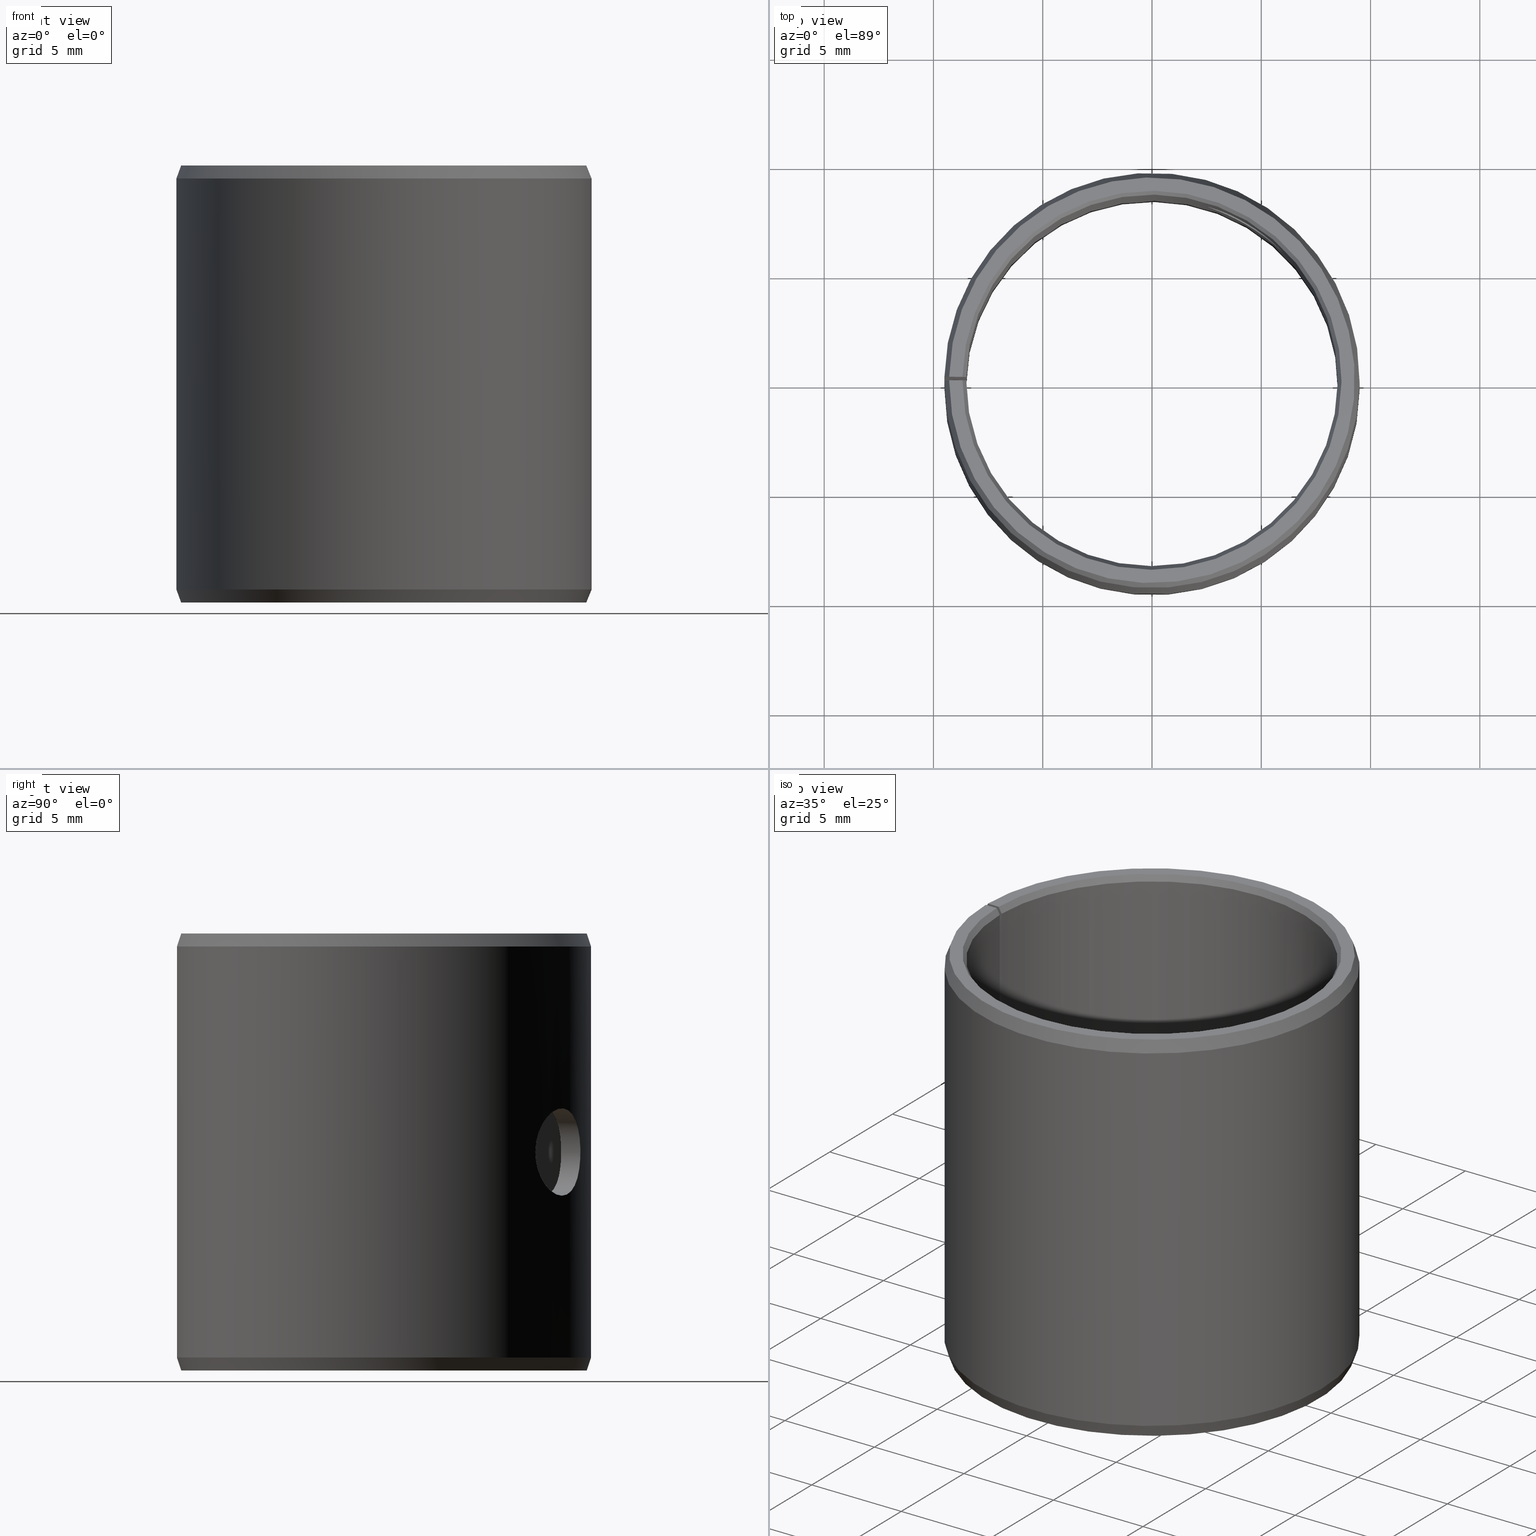
[diagram: canonical four-view strip — front | top / right | iso, engineering-drawing reading convention]
A machine part, canonical four-view strip (front | top / right | iso — engineering-drawing reading convention). The complete STEP part file that produces these views, byte-faithful:
ISO-10303-21;
HEADER;
FILE_DESCRIPTION(('STEP AP203'),'1');
FILE_NAME('440-POM1720LMB.stp','2016-09-20T20:51:23',(' '),(' '),'Spatial InterOp 3D',' ',' ');
FILE_SCHEMA(('CONFIG_CONTROL_DESIGN'));
ENDSEC;
DATA;
#1=DESIGN_CONTEXT('',#51,'design');
#2=APPLICATION_PROTOCOL_DEFINITION('INTERNATIONAL STANDARD','config_control_design',1994,#51);
#3=PRODUCT_CATEGORY_RELATIONSHIP('NONE','NONE',#52,#53);
#4=DATE_AND_TIME(#54,#55);
#5=DATE_TIME_ROLE('creation_date');
#6=DATE_TIME_ROLE('classification_date');
#7=PERSON_AND_ORGANIZATION_ROLE('creator');
#8=PERSON_AND_ORGANIZATION_ROLE('design_supplier');
#9=PERSON_AND_ORGANIZATION_ROLE('classification_officer');
#10=PERSON_AND_ORGANIZATION_ROLE('design_owner');
#11=APPROVAL_PERSON_ORGANIZATION(#56,#57,#58);
#12=APPROVAL_DATE_TIME(#4,#57);
#13=CC_DESIGN_APPROVAL(#57,(#59,#60,#61));
#14=CC_DESIGN_DATE_AND_TIME_ASSIGNMENT(#4,#5,(#61));
#15=CC_DESIGN_DATE_AND_TIME_ASSIGNMENT(#4,#6,(#59));
#16=CC_DESIGN_PERSON_AND_ORGANIZATION_ASSIGNMENT(#56,#10,(#62));
#17=CC_DESIGN_PERSON_AND_ORGANIZATION_ASSIGNMENT(#56,#7,(#61));
#18=CC_DESIGN_PERSON_AND_ORGANIZATION_ASSIGNMENT(#56,#7,(#60));
#19=CC_DESIGN_PERSON_AND_ORGANIZATION_ASSIGNMENT(#56,#8,(#60));
#20=CC_DESIGN_SECURITY_CLASSIFICATION(#59,(#60));
#21=CC_DESIGN_PERSON_AND_ORGANIZATION_ASSIGNMENT(#56,#9,(#59));
#22=SHAPE_DEFINITION_REPRESENTATION(#63,#64);
#23=DESIGN_CONTEXT('',#65,'design');
#24=APPLICATION_PROTOCOL_DEFINITION('INTERNATIONAL STANDARD','config_control_design',1994,#65);
#25=PRODUCT_CATEGORY_RELATIONSHIP('NONE','NONE',#66,#67);
#26=DATE_AND_TIME(#68,#69);
#27=DATE_TIME_ROLE('creation_date');
#28=DATE_TIME_ROLE('classification_date');
#29=PERSON_AND_ORGANIZATION_ROLE('creator');
#30=PERSON_AND_ORGANIZATION_ROLE('design_supplier');
#31=PERSON_AND_ORGANIZATION_ROLE('classification_officer');
#32=PERSON_AND_ORGANIZATION_ROLE('design_owner');
#33=APPROVAL_PERSON_ORGANIZATION(#70,#71,#72);
#34=APPROVAL_DATE_TIME(#26,#71);
#35=CC_DESIGN_APPROVAL(#71,(#73,#74,#75));
#36=CC_DESIGN_DATE_AND_TIME_ASSIGNMENT(#26,#27,(#75));
#37=CC_DESIGN_DATE_AND_TIME_ASSIGNMENT(#26,#28,(#73));
#38=CC_DESIGN_PERSON_AND_ORGANIZATION_ASSIGNMENT(#70,#32,(#76));
#39=CC_DESIGN_PERSON_AND_ORGANIZATION_ASSIGNMENT(#70,#29,(#75));
#40=CC_DESIGN_PERSON_AND_ORGANIZATION_ASSIGNMENT(#70,#29,(#74));
#41=CC_DESIGN_PERSON_AND_ORGANIZATION_ASSIGNMENT(#70,#30,(#74));
#42=CC_DESIGN_SECURITY_CLASSIFICATION(#73,(#74));
#43=CC_DESIGN_PERSON_AND_ORGANIZATION_ASSIGNMENT(#70,#31,(#73));
#44=CONTEXT_DEPENDENT_SHAPE_REPRESENTATION(#77,#78);
#45=SHAPE_DEFINITION_REPRESENTATION(#79,#80);
#46=SHAPE_REPRESENTATION_RELATIONSHIP('NONE','NONE',#80,#81);
#47= (GEOMETRIC_REPRESENTATION_CONTEXT(3)GLOBAL_UNCERTAINTY_ASSIGNED_CONTEXT((#84))GLOBAL_UNIT_ASSIGNED_CONTEXT((#86,#87,#88))REPRESENTATION_CONTEXT('NONE','WORKSPACE'));
#51=APPLICATION_CONTEXT('CONFIGURATION CONTROLLED 3D DESIGNS OF MECHANICAL PARTS AND ASSEMBLIES');
#52=PRODUCT_CATEGORY('part','NONE');
#53=PRODUCT_RELATED_PRODUCT_CATEGORY('detail',' ',(#62));
#54=CALENDAR_DATE(2016,20,8);
#55=LOCAL_TIME(22,51,23.0,#90);
#56=PERSON_AND_ORGANIZATION(#91,#92);
#57=APPROVAL(#93,'SOLID MODEL');
#58=APPROVAL_ROLE('APPROVED');
#59=SECURITY_CLASSIFICATION('','',#94);
#60=PRODUCT_DEFINITION_FORMATION_WITH_SPECIFIED_SOURCE(' ','NONE',#62,.NOT_KNOWN.);
#61=PRODUCT_DEFINITION('NONE','NONE',#60,#1);
#62=PRODUCT('','','PART--DESC',(#95));
#63=PRODUCT_DEFINITION_SHAPE('NONE','NONE',#61);
#64=SHAPE_REPRESENTATION('',(#96,#97),#98);
#65=APPLICATION_CONTEXT('CONFIGURATION CONTROLLED 3D DESIGNS OF MECHANICAL PARTS AND ASSEMBLIES');
#66=PRODUCT_CATEGORY('part','NONE');
#67=PRODUCT_RELATED_PRODUCT_CATEGORY('detail',' ',(#76));
#68=CALENDAR_DATE(2016,20,8);
#69=LOCAL_TIME(22,51,23.0,#99);
#70=PERSON_AND_ORGANIZATION(#100,#101);
#71=APPROVAL(#102,'SOLID MODEL');
#72=APPROVAL_ROLE('APPROVED');
#73=SECURITY_CLASSIFICATION('','',#103);
#74=PRODUCT_DEFINITION_FORMATION_WITH_SPECIFIED_SOURCE(' ','NONE',#76,.NOT_KNOWN.);
#75=PRODUCT_DEFINITION('440-POM1720LMB','440-POM1720LMB',#74,#23);
#76=PRODUCT('440-POM1720LMB','440-POM1720LMB','PART-440-POM1720LMB-DESC',(#104));
#77=(REPRESENTATION_RELATIONSHIP('','',#80,#64)REPRESENTATION_RELATIONSHIP_WITH_TRANSFORMATION(#107)SHAPE_REPRESENTATION_RELATIONSHIP());
#78=PRODUCT_DEFINITION_SHAPE('NAUO-PROD-DEF','NAUO-PROD-DEF',#109);
#79=PRODUCT_DEFINITION_SHAPE('NONE','NONE',#75);
#80=SHAPE_REPRESENTATION('440-POM1720LMB',(#96),#98);
#81=ADVANCED_BREP_SHAPE_REPRESENTATION('',(#110),#47);
#84=UNCERTAINTY_MEASURE_WITH_UNIT(LENGTH_MEASURE(1.0E-006),#86,'','');
#86= (CONVERSION_BASED_UNIT('METRE',#113)LENGTH_UNIT()NAMED_UNIT(#116));
#87= (NAMED_UNIT(#118)PLANE_ANGLE_UNIT()SI_UNIT($,.RADIAN.));
#88= (NAMED_UNIT(#118)SOLID_ANGLE_UNIT()SI_UNIT($,.STERADIAN.));
#90=COORDINATED_UNIVERSAL_TIME_OFFSET(1,0,.AHEAD.);
#91=PERSON('','UNSPECIFIED',$,$,$,$);
#92=ORGANIZATION('UNSPECIFIED','UNSPECIFIED','UNSPECIFIED');
#93=APPROVAL_STATUS('approved');
#94=SECURITY_CLASSIFICATION_LEVEL('unclassified');
#95=MECHANICAL_CONTEXT('',#51,'mechanical');
#96=AXIS2_PLACEMENT_3D('',#124,#125,#126);
#97=AXIS2_PLACEMENT_3D('',#127,#128,#129);
#98= (GEOMETRIC_REPRESENTATION_CONTEXT(3)GLOBAL_UNCERTAINTY_ASSIGNED_CONTEXT((#132))GLOBAL_UNIT_ASSIGNED_CONTEXT((#134,#135,#136))REPRESENTATION_CONTEXT('NONE','WORKSPACE'));
#99=COORDINATED_UNIVERSAL_TIME_OFFSET(1,0,.AHEAD.);
#100=PERSON('','UNSPECIFIED',$,$,$,$);
#101=ORGANIZATION('UNSPECIFIED','UNSPECIFIED','UNSPECIFIED');
#102=APPROVAL_STATUS('approved');
#103=SECURITY_CLASSIFICATION_LEVEL('unclassified');
#104=MECHANICAL_CONTEXT('',#65,'mechanical');
#107=ITEM_DEFINED_TRANSFORMATION('','',#96,#97);
#109=NEXT_ASSEMBLY_USAGE_OCCURRENCE('440-POM1720LMB','440-POM1720LMB','440-POM1720LMB',#61,#75,$);
#110=MANIFOLD_SOLID_BREP('',#138);
#113=LENGTH_MEASURE_WITH_UNIT(LENGTH_MEASURE(1.0),#139);
#116=DIMENSIONAL_EXPONENTS(1.0,0.0,0.0,0.0,0.0,0.0,0.0);
#118=DIMENSIONAL_EXPONENTS(0.0,0.0,0.0,0.0,0.0,0.0,0.0);
#124=CARTESIAN_POINT('',(0.0,0.0,0.0));
#125=DIRECTION('',(0.0,0.0,1.0));
#126=DIRECTION('',(1.0,0.0,0.0));
#127=CARTESIAN_POINT('',(0.0,0.0,0.0));
#128=DIRECTION('',(5.48707263966374E-016,-5.48707263966376E-016,1.0));
#129=DIRECTION('',(1.39349996950756E-015,1.0,5.48707263966375E-016));
#132=UNCERTAINTY_MEASURE_WITH_UNIT(LENGTH_MEASURE(1.0E-006),#134,'','');
#134= (CONVERSION_BASED_UNIT('METRE',#142)LENGTH_UNIT()NAMED_UNIT(#145));
#135= (NAMED_UNIT(#147)PLANE_ANGLE_UNIT()SI_UNIT($,.RADIAN.));
#136= (NAMED_UNIT(#147)SOLID_ANGLE_UNIT()SI_UNIT($,.STERADIAN.));
#138=CLOSED_SHELL('',(#153,#154,#155,#156,#157,#158,#159,#160,#161,#162,#163));
#139= (NAMED_UNIT(#116)LENGTH_UNIT()SI_UNIT($,.METRE.));
#142=LENGTH_MEASURE_WITH_UNIT(LENGTH_MEASURE(1.0),#165);
#145=DIMENSIONAL_EXPONENTS(1.0,0.0,0.0,0.0,0.0,0.0,0.0);
#147=DIMENSIONAL_EXPONENTS(0.0,0.0,0.0,0.0,0.0,0.0,0.0);
#153=ADVANCED_FACE('',(#166),#167,.F.);
#154=ADVANCED_FACE('',(#168),#169,.T.);
#155=ADVANCED_FACE('',(#170),#171,.T.);
#156=ADVANCED_FACE('',(#172),#173,.T.);
#157=ADVANCED_FACE('',(#174),#175,.T.);
#158=ADVANCED_FACE('',(#176),#177,.F.);
#159=ADVANCED_FACE('',(#178),#179,.T.);
#160=ADVANCED_FACE('',(#180),#181,.F.);
#161=ADVANCED_FACE('',(#182,#183),#184,.F.);
#162=ADVANCED_FACE('',(#185,#186),#187,.T.);
#163=ADVANCED_FACE('',(#188,#189),#190,.F.);
#165= (NAMED_UNIT(#145)LENGTH_UNIT()SI_UNIT($,.METRE.));
#166=FACE_OUTER_BOUND('',#192,.T.);
#167=CONICAL_SURFACE('',#193,0.0085,0.523598775598307);
#168=FACE_OUTER_BOUND('',#194,.T.);
#169=PLANE('',#195);
#170=FACE_OUTER_BOUND('',#196,.T.);
#171=CONICAL_SURFACE('',#197,0.00928161785944028,0.349065850398866);
#172=FACE_OUTER_BOUND('',#198,.T.);
#173=CONICAL_SURFACE('',#199,0.0095,0.349065850398866);
#174=FACE_OUTER_BOUND('',#200,.T.);
#175=PLANE('',#201);
#176=FACE_OUTER_BOUND('',#202,.T.);
#177=CONICAL_SURFACE('',#203,0.00867320508075689,0.523598775598298);
#178=FACE_OUTER_BOUND('',#204,.T.);
#179=PLANE('',#205);
#180=FACE_OUTER_BOUND('',#206,.T.);
#181=PLANE('',#207);
#182=FACE_OUTER_BOUND('',#208,.T.);
#183=FACE_BOUND('',#209,.T.);
#184=CYLINDRICAL_SURFACE('',#210,0.0085);
#185=FACE_OUTER_BOUND('',#211,.T.);
#186=FACE_BOUND('',#212,.T.);
#187=CYLINDRICAL_SURFACE('',#213,0.0095);
#188=FACE_OUTER_BOUND('',#214,.T.);
#189=FACE_OUTER_BOUND('',#215,.T.);
#190=CYLINDRICAL_SURFACE('',#216,0.002);
#192=EDGE_LOOP('',(#217,#218,#219,#220));
#193=AXIS2_PLACEMENT_3D('',#221,#222,#223);
#194=EDGE_LOOP('',(#224,#225,#226,#227));
#195=AXIS2_PLACEMENT_3D('',#228,#229,#230);
#196=EDGE_LOOP('',(#231,#232,#233,#234));
#197=AXIS2_PLACEMENT_3D('',#235,#236,#237);
#198=EDGE_LOOP('',(#238,#239,#240,#241));
#199=AXIS2_PLACEMENT_3D('',#242,#243,#244);
#200=EDGE_LOOP('',(#245,#246,#247,#248));
#201=AXIS2_PLACEMENT_3D('',#249,#250,#251);
#202=EDGE_LOOP('',(#252,#253,#254,#255));
#203=AXIS2_PLACEMENT_3D('',#256,#257,#258);
#204=EDGE_LOOP('',(#259,#260,#261,#262,#263,#264,#265,#266));
#205=AXIS2_PLACEMENT_3D('',#267,#268,#269);
#206=EDGE_LOOP('',(#270,#271,#272,#273,#274,#275,#276,#277));
#207=AXIS2_PLACEMENT_3D('',#278,#279,#280);
#208=EDGE_LOOP('',(#281,#282,#283,#284));
#209=EDGE_LOOP('',(#285));
#210=AXIS2_PLACEMENT_3D('',#286,#287,#288);
#211=EDGE_LOOP('',(#289,#290,#291,#292));
#212=EDGE_LOOP('',(#293));
#213=AXIS2_PLACEMENT_3D('',#294,#295,#296);
#214=EDGE_LOOP('',(#297));
#215=EDGE_LOOP('',(#298));
#216=AXIS2_PLACEMENT_3D('',#299,#300,#301);
#217=ORIENTED_EDGE('',*,*,#302,.T.);
#218=ORIENTED_EDGE('',*,*,#303,.F.);
#219=ORIENTED_EDGE('',*,*,#304,.F.);
#220=ORIENTED_EDGE('',*,*,#305,.T.);
#221=CARTESIAN_POINT('',(-6.93889390390723E-018,-6.93889390390723E-018,0.0003));
#222=DIRECTION('',(6.12323399573677E-017,-0.0,-1.0));
#223=DIRECTION('',(-1.0,0.0,-6.12323399573677E-017));
#224=ORIENTED_EDGE('',*,*,#306,.T.);
#225=ORIENTED_EDGE('',*,*,#307,.F.);
#226=ORIENTED_EDGE('',*,*,#302,.F.);
#227=ORIENTED_EDGE('',*,*,#308,.T.);
#228=CARTESIAN_POINT('',(0.000151368300183277,0.00867188410961347,-2.88886962217922E-019));
#229=DIRECTION('',(6.12323399573677E-017,0.0,-1.0));
#230=DIRECTION('',(-1.0,0.0,-6.12323399573677E-017));
#231=ORIENTED_EDGE('',*,*,#309,.T.);
#232=ORIENTED_EDGE('',*,*,#310,.F.);
#233=ORIENTED_EDGE('',*,*,#306,.F.);
#234=ORIENTED_EDGE('',*,*,#311,.T.);
#235=CARTESIAN_POINT('',(-6.93889390390723E-018,-6.93889390390723E-018,-5.42101086242752E-019));
#236=DIRECTION('',(-6.12323399573677E-017,0.0,1.0));
#237=DIRECTION('',(1.0,0.0,6.12323399573677E-017));
#238=ORIENTED_EDGE('',*,*,#312,.T.);
#239=ORIENTED_EDGE('',*,*,#313,.F.);
#240=ORIENTED_EDGE('',*,*,#314,.F.);
#241=ORIENTED_EDGE('',*,*,#315,.T.);
#242=CARTESIAN_POINT('',(-8.67361737988404E-018,-6.93889390390723E-018,0.0194));
#243=DIRECTION('',(6.12323399573677E-017,-0.0,-1.0));
#244=DIRECTION('',(-1.0,0.0,-6.12323399573677E-017));
#245=ORIENTED_EDGE('',*,*,#316,.T.);
#246=ORIENTED_EDGE('',*,*,#317,.T.);
#247=ORIENTED_EDGE('',*,*,#318,.F.);
#248=ORIENTED_EDGE('',*,*,#312,.F.);
#249=CARTESIAN_POINT('',(0.000161986567278495,0.00928020422408375,0.02));
#250=DIRECTION('',(-6.12323399573677E-017,0.0,1.0));
#251=DIRECTION('',(1.0,0.0,6.12323399573677E-017));
#252=ORIENTED_EDGE('',*,*,#319,.T.);
#253=ORIENTED_EDGE('',*,*,#320,.F.);
#254=ORIENTED_EDGE('',*,*,#317,.F.);
#255=ORIENTED_EDGE('',*,*,#321,.T.);
#256=CARTESIAN_POINT('',(-8.67361737988404E-018,-6.93889390390723E-018,0.02));
#257=DIRECTION('',(-6.12323399573677E-017,0.0,1.0));
#258=DIRECTION('',(1.0,0.0,6.12323399573677E-017));
#259=ORIENTED_EDGE('',*,*,#320,.T.);
#260=ORIENTED_EDGE('',*,*,#322,.T.);
#261=ORIENTED_EDGE('',*,*,#303,.T.);
#262=ORIENTED_EDGE('',*,*,#307,.T.);
#263=ORIENTED_EDGE('',*,*,#310,.T.);
#264=ORIENTED_EDGE('',*,*,#323,.T.);
#265=ORIENTED_EDGE('',*,*,#313,.T.);
#266=ORIENTED_EDGE('',*,*,#318,.T.);
#267=CARTESIAN_POINT('',(-6.93889390390723E-018,-0.014,0.0));
#268=DIRECTION('',(1.0,0.0,0.0));
#269=DIRECTION('',(0.0,0.0,-1.0));
#270=ORIENTED_EDGE('',*,*,#321,.F.);
#271=ORIENTED_EDGE('',*,*,#316,.F.);
#272=ORIENTED_EDGE('',*,*,#315,.F.);
#273=ORIENTED_EDGE('',*,*,#324,.F.);
#274=ORIENTED_EDGE('',*,*,#311,.F.);
#275=ORIENTED_EDGE('',*,*,#308,.F.);
#276=ORIENTED_EDGE('',*,*,#305,.F.);
#277=ORIENTED_EDGE('',*,*,#325,.F.);
#278=CARTESIAN_POINT('',(-0.000244333690121977,-0.0139978677321895,-1.49611235765866E-020));
#279=DIRECTION('',(0.999847695156391,-0.0174524064372836,-9.3259819610035E-021));
#280=DIRECTION('',(9.32598196100733E-021,1.0686516840419E-018,-1.0));
#281=ORIENTED_EDGE('',*,*,#304,.T.);
#282=ORIENTED_EDGE('',*,*,#322,.F.);
#283=ORIENTED_EDGE('',*,*,#319,.F.);
#284=ORIENTED_EDGE('',*,*,#325,.T.);
#285=ORIENTED_EDGE('',*,*,#326,.T.);
#286=CARTESIAN_POINT('',(-6.93889390390723E-018,-6.93889390390723E-018,0.0));
#287=DIRECTION('',(6.12323399573677E-017,0.0,-1.0));
#288=DIRECTION('',(-1.0,0.0,-6.12323399573677E-017));
#289=ORIENTED_EDGE('',*,*,#314,.T.);
#290=ORIENTED_EDGE('',*,*,#323,.F.);
#291=ORIENTED_EDGE('',*,*,#309,.F.);
#292=ORIENTED_EDGE('',*,*,#324,.T.);
#293=ORIENTED_EDGE('',*,*,#327,.T.);
#294=CARTESIAN_POINT('',(-6.93889390390723E-018,-6.93889390390723E-018,0.0));
#295=DIRECTION('',(6.12323399573677E-017,0.0,-1.0));
#296=DIRECTION('',(-1.0,0.0,-6.12323399573677E-017));
#297=ORIENTED_EDGE('',*,*,#326,.F.);
#298=ORIENTED_EDGE('',*,*,#327,.F.);
#299=CARTESIAN_POINT('',(0.00385725285316759,-0.00231767133708176,0.01));
#300=DIRECTION('',(0.857167300703911,-0.515038074907061,0.0));
#301=DIRECTION('',(-0.515038074907061,-0.857167300703911,0.0));
#302=EDGE_CURVE('',#328,#329,#330,.T.);
#303=EDGE_CURVE('',#331,#329,#332,.T.);
#304=EDGE_CURVE('',#333,#331,#334,.T.);
#305=EDGE_CURVE('',#333,#328,#335,.T.);
#306=EDGE_CURVE('',#336,#337,#338,.T.);
#307=EDGE_CURVE('',#329,#337,#339,.T.);
#308=EDGE_CURVE('',#328,#336,#340,.T.);
#309=EDGE_CURVE('',#341,#342,#343,.T.);
#310=EDGE_CURVE('',#337,#342,#344,.T.);
#311=EDGE_CURVE('',#336,#341,#345,.T.);
#312=EDGE_CURVE('',#346,#347,#348,.T.);
#313=EDGE_CURVE('',#349,#347,#350,.T.);
#314=EDGE_CURVE('',#351,#349,#352,.T.);
#315=EDGE_CURVE('',#351,#346,#353,.T.);
#316=EDGE_CURVE('',#346,#354,#355,.T.);
#317=EDGE_CURVE('',#354,#356,#357,.T.);
#318=EDGE_CURVE('',#347,#356,#358,.T.);
#319=EDGE_CURVE('',#359,#360,#361,.T.);
#320=EDGE_CURVE('',#356,#360,#362,.T.);
#321=EDGE_CURVE('',#354,#359,#363,.T.);
#322=EDGE_CURVE('',#360,#331,#364,.T.);
#323=EDGE_CURVE('',#342,#349,#365,.T.);
#324=EDGE_CURVE('',#341,#351,#366,.T.);
#325=EDGE_CURVE('',#359,#333,#367,.T.);
#326=EDGE_CURVE('',#368,#368,#369,.T.);
#327=EDGE_CURVE('',#370,#370,#371,.T.);
#328=VERTEX_POINT('',#372);
#329=VERTEX_POINT('',#373);
#330=CIRCLE('',#374,0.00867320508075689);
#331=VERTEX_POINT('',#375);
#332=LINE('',#376,#377);
#333=VERTEX_POINT('',#378);
#334=CIRCLE('',#379,0.0085);
#335=LINE('',#380,#381);
#336=VERTEX_POINT('',#382);
#337=VERTEX_POINT('',#383);
#338=CIRCLE('',#384,0.00928161785944028);
#339=LINE('',#385,#386);
#340=LINE('',#387,#388);
#341=VERTEX_POINT('',#389);
#342=VERTEX_POINT('',#390);
#343=CIRCLE('',#391,0.0095);
#344=LINE('',#392,#393);
#345=LINE('',#394,#395);
#346=VERTEX_POINT('',#396);
#347=VERTEX_POINT('',#397);
#348=CIRCLE('',#398,0.00928161785944028);
#349=VERTEX_POINT('',#399);
#350=LINE('',#400,#401);
#351=VERTEX_POINT('',#402);
#352=CIRCLE('',#403,0.0095);
#353=LINE('',#404,#405);
#354=VERTEX_POINT('',#406);
#355=LINE('',#407,#408);
#356=VERTEX_POINT('',#409);
#357=CIRCLE('',#410,0.00867320508075689);
#358=LINE('',#411,#412);
#359=VERTEX_POINT('',#413);
#360=VERTEX_POINT('',#414);
#361=CIRCLE('',#415,0.0085);
#362=LINE('',#416,#417);
#363=LINE('',#418,#419);
#364=LINE('',#420,#421);
#365=LINE('',#422,#423);
#366=LINE('',#424,#425);
#367=LINE('',#426,#427);
#368=VERTEX_POINT('',#428);
#369=B_SPLINE_CURVE_WITH_KNOTS('',3,(#429,#430,#431,#432,#433,#434,#435,#436,#437,#438,#439,#440,#441,#442,#443,#444,#445,#446,#447,#448,#449,#450,#451,#452,#453,#454,#455,#456,#457,#458,#459,#460,#461,#462,#463,#464,#465,#466,#467,#468,#469,#470,#471,#472,#473,#474,#475,#476,#477,#478,#479,#480,#481,#482),.UNSPECIFIED.,.T.,.F.,(2,2,2,2,2,2,2,2,2,2,2,2,2,2,2,2,2,2,2,2,2,2,2,2,2,2,2,2,2),(-0.000392130648972248,0.0,0.000392130648972245,0.00078426129794449,0.00117639194691674,0.00156852259588898,0.00235278389383347,0.00274491454280572,0.00313704519177797,0.00352917584075021,0.00392130648972246,0.00470556778766696,0.00509769843663921,0.00548982908561146,0.00588195973458371,0.00627409038355596,0.00705835168150045,0.0074504823304727,0.00784261297944495,0.00823474362841719,0.00862687427738944,0.00941113557533394,0.00980326622430618,0.0101953968732784,0.0109796581712229,0.0117639194691674,0.0121560501181396,0.0125481807671119,0.0129403114160841),.UNSPECIFIED.);
#370=VERTEX_POINT('',#483);
#371=B_SPLINE_CURVE_WITH_KNOTS('',3,(#484,#485,#486,#487,#488,#489,#490,#491,#492,#493,#494,#495,#496,#497,#498,#499,#500,#501,#502,#503,#504,#505,#506,#507,#508,#509,#510,#511,#512,#513,#514,#515,#516,#517,#518,#519,#520,#521,#522,#523,#524,#525,#526,#527,#528,#529,#530,#531,#532,#533,#534,#535,#536,#537),.UNSPECIFIED.,.T.,.F.,(2,2,2,2,2,2,2,2,2,2,2,2,2,2,2,2,2,2,2,2,2,2,2,2,2,2,2,2,2),(-0.000391852452461565,0.0,0.000391852452461561,0.000783704904923122,0.00117555735738468,0.00156740980984624,0.00235111471476937,0.00313481961969249,0.00352667207215406,0.00391852452461562,0.00470222942953875,0.00509408188200031,0.00548593433446188,0.00587778678692344,0.00626963923938501,0.00705334414430814,0.00744519659676971,0.00783704904923128,0.00822890150169284,0.00862075395415441,0.00940445885907754,0.00979631131153911,0.0101881637640007,0.0105800162164622,0.0109718686689238,0.0117555735738469,0.0121474260263085,0.0125392784787701,0.0129311309312316),.UNSPECIFIED.);
#372=CARTESIAN_POINT('',(0.000151368300183277,0.00867188410961347,-4.49414734086836E-020));
#373=CARTESIAN_POINT('',(-6.93889390390723E-018,0.00867320508075688,-5.42101086242752E-020));
#374=AXIS2_PLACEMENT_3D('',#538,#539,#540);
#375=CARTESIAN_POINT('',(-6.93889390390723E-018,0.0085,0.0003));
#376=CARTESIAN_POINT('',(-6.93889390390723E-018,0.0085,0.0003));
#377=VECTOR('',#541,1.0);
#378=CARTESIAN_POINT('',(0.000148345454716904,0.00849870540882932,0.0003));
#379=AXIS2_PLACEMENT_3D('',#542,#543,#544);
#380=CARTESIAN_POINT('',(0.000148345454716904,0.00849870540882932,0.0003));
#381=VECTOR('',#545,1.0);
#382=CARTESIAN_POINT('',(0.000161986567278496,0.00928020422408375,-5.32182269686628E-019));
#383=CARTESIAN_POINT('',(-6.93889390390723E-018,0.00928161785944027,-5.42101086242752E-019));
#384=AXIS2_PLACEMENT_3D('',#546,#547,#548);
#385=CARTESIAN_POINT('',(-6.93889390390723E-018,0.00867320508075688,-7.45090761974932E-020));
#386=VECTOR('',#549,1.0);
#387=CARTESIAN_POINT('',(0.000151368300183277,0.00867188410961347,-6.52404409819016E-020));
#388=VECTOR('',#550,1.0);
#389=CARTESIAN_POINT('',(0.000165797861154187,0.00949855310398571,0.0006));
#390=CARTESIAN_POINT('',(-6.93889390390723E-018,0.0095,0.0006));
#391=AXIS2_PLACEMENT_3D('',#551,#552,#553);
#392=CARTESIAN_POINT('',(-6.93889390390723E-018,0.00928161785944027,-5.42101086242752E-019));
#393=VECTOR('',#554,1.0);
#394=CARTESIAN_POINT('',(0.000161986567278496,0.00928020422408375,-5.32182269686628E-019));
#395=VECTOR('',#555,1.0);
#396=CARTESIAN_POINT('',(0.000161986567278495,0.00928020422408375,0.02));
#397=CARTESIAN_POINT('',(-8.67361737988404E-018,0.00928161785944027,0.02));
#398=AXIS2_PLACEMENT_3D('',#556,#557,#558);
#399=CARTESIAN_POINT('',(-8.67361737988404E-018,0.0095,0.0194));
#400=CARTESIAN_POINT('',(-8.67361737988404E-018,0.0095,0.0194));
#401=VECTOR('',#559,1.0);
#402=CARTESIAN_POINT('',(0.000165797861154185,0.00949855310398571,0.0194));
#403=AXIS2_PLACEMENT_3D('',#560,#561,#562);
#404=CARTESIAN_POINT('',(0.000165797861154185,0.00949855310398571,0.0194));
#405=VECTOR('',#563,1.0);
#406=CARTESIAN_POINT('',(0.000151368300183275,0.00867188410961347,0.02));
#407=CARTESIAN_POINT('',(0.000161986567278495,0.00928020422408375,0.02));
#408=VECTOR('',#564,1.0);
#409=CARTESIAN_POINT('',(-8.67361737988404E-018,0.00867320508075688,0.02));
#410=AXIS2_PLACEMENT_3D('',#565,#566,#567);
#411=CARTESIAN_POINT('',(-8.67361737988404E-018,0.00928161785944027,0.02));
#412=VECTOR('',#568,1.0);
#413=CARTESIAN_POINT('',(0.000148345454716902,0.00849870540882932,0.0197));
#414=CARTESIAN_POINT('',(-8.67361737988404E-018,0.0085,0.0197));
#415=AXIS2_PLACEMENT_3D('',#569,#570,#571);
#416=CARTESIAN_POINT('',(-8.67361737988404E-018,0.00867320508075688,0.02));
#417=VECTOR('',#572,1.0);
#418=CARTESIAN_POINT('',(0.000151368300183275,0.00867188410961347,0.02));
#419=VECTOR('',#573,1.0);
#420=CARTESIAN_POINT('',(-8.67361737988404E-018,0.0085,0.0197));
#421=VECTOR('',#574,1.0);
#422=CARTESIAN_POINT('',(-6.93889390390723E-018,0.0095,0.0006));
#423=VECTOR('',#575,1.0);
#424=CARTESIAN_POINT('',(0.000165797861154187,0.00949855310398571,0.0006));
#425=VECTOR('',#576,1.0);
#426=CARTESIAN_POINT('',(0.000148345454716902,0.00849870540882932,0.0197));
#427=VECTOR('',#577,1.0);
#428=CARTESIAN_POINT('',(0.00605128791936626,-0.00596924739954141,0.01));
#429=CARTESIAN_POINT('',(0.00605128791936626,-0.00596924739954141,0.0101326300495121));
#430=CARTESIAN_POINT('',(0.00605128791936626,-0.00596924739954141,0.00986736995048787));
#431=CARTESIAN_POINT('',(0.00606075190660702,-0.00595969592197073,0.00973705282044995));
#432=CARTESIAN_POINT('',(0.00609744831417399,-0.00592214599716792,0.00948082440571805));
#433=CARTESIAN_POINT('',(0.00612514232217834,-0.00589366470314775,0.00935355674978138));
#434=CARTESIAN_POINT('',(0.00619610537298328,-0.00581901454775272,0.00911160176056763));
#435=CARTESIAN_POINT('',(0.0062390887029513,-0.00577314868125431,0.00899691967197587));
#436=CARTESIAN_POINT('',(0.00633863395333815,-0.00566367311422116,0.00877987948968845));
#437=CARTESIAN_POINT('',(0.00639548726638319,-0.00559968107463609,0.00867749526455098));
#438=CARTESIAN_POINT('',(0.00657734775952636,-0.00538732201549916,0.00840186802131529));
#439=CARTESIAN_POINT('',(0.00671838971299242,-0.00521263239489055,0.00825300273933793));
#440=CARTESIAN_POINT('',(0.00693218753002888,-0.004920299813374,0.00810313160861428));
#441=CARTESIAN_POINT('',(0.00700493940434094,-0.00481638344888828,0.00806446565475928));
#442=CARTESIAN_POINT('',(0.00714822547711601,-0.00460104315492944,0.00801289733189056));
#443=CARTESIAN_POINT('',(0.00721782900167535,-0.00449111263303328,0.00800008072019332));
#444=CARTESIAN_POINT('',(0.00735275097206848,-0.00426663817574948,0.00799992003267006));
#445=CARTESIAN_POINT('',(0.00741861539795898,-0.00415098502388569,0.00801301770499162));
#446=CARTESIAN_POINT('',(0.00754077046746997,-0.00392470531993042,0.00806425435075001));
#447=CARTESIAN_POINT('',(0.00759766854837766,-0.0038131724129343,0.00810215849750155));
#448=CARTESIAN_POINT('',(0.00775696045338443,-0.0034841023824956,0.00825310800139503));
#449=CARTESIAN_POINT('',(0.00784399861340388,-0.00327979713696828,0.00840022399141423));
#450=CARTESIAN_POINT('',(0.0079470587852551,-0.00301713482303766,0.0086784074184219));
#451=CARTESIAN_POINT('',(0.00797624678715302,-0.00293852627045677,0.00877886610276999));
#452=CARTESIAN_POINT('',(0.00802608056325134,-0.00279955000739983,0.00899502354069977));
#453=CARTESIAN_POINT('',(0.00804685953460417,-0.00273873887146016,0.00911213376785764));
#454=CARTESIAN_POINT('',(0.00807937443150176,-0.0026412776778091,0.00935359348332474));
#455=CARTESIAN_POINT('',(0.00809131926333239,-0.00260408433149366,0.00947825558169333));
#456=CARTESIAN_POINT('',(0.00810740331793531,-0.00255356888824957,0.0097356042546279));
#457=CARTESIAN_POINT('',(0.00811142319829333,-0.00254063253962684,0.00986837707381594));
#458=CARTESIAN_POINT('',(0.00811147409621693,-0.00254047003510961,0.0102607147483269));
#459=CARTESIAN_POINT('',(0.00809567274230487,-0.00259240089416434,0.0105247844613286));
#460=CARTESIAN_POINT('',(0.00804713415096325,-0.00273792747220254,0.0108861185974771));
#461=CARTESIAN_POINT('',(0.00802647047096328,-0.0027984387928087,0.0110030635266799));
#462=CARTESIAN_POINT('',(0.00797647626886923,-0.00293790984043214,0.011220357457772));
#463=CARTESIAN_POINT('',(0.00794729496336893,-0.00301649322855567,0.0113207515708125));
#464=CARTESIAN_POINT('',(0.00787907180972562,-0.00319044762531819,0.0115053059568984));
#465=CARTESIAN_POINT('',(0.00783976845579477,-0.00328632224273839,0.0115894774653465));
#466=CARTESIAN_POINT('',(0.00775291110746127,-0.00348629497940086,0.0117342092200346));
#467=CARTESIAN_POINT('',(0.00770503478889729,-0.00359128573447079,0.0117958664316531));
#468=CARTESIAN_POINT('',(0.00754561231562008,-0.00392088154389879,0.0119476277416594));
#469=CARTESIAN_POINT('',(0.00742242211414251,-0.00415057979009107,0.0119998476506563));
#470=CARTESIAN_POINT('',(0.00721856185374282,-0.00448996441214126,0.0120000756770734));
#471=CARTESIAN_POINT('',(0.00714891567381471,-0.00459994764156631,0.0119872159980365));
#472=CARTESIAN_POINT('',(0.00700659373539046,-0.00481395449123197,0.0119362625986542));
#473=CARTESIAN_POINT('',(0.00693324822811895,-0.00491881662942581,0.0118975198552577));
#474=CARTESIAN_POINT('',(0.00671866388634905,-0.00521232267696378,0.0117473720809414));
#475=CARTESIAN_POINT('',(0.00657778929067078,-0.00538678126779979,0.0115986315827459));
#476=CARTESIAN_POINT('',(0.00633539512267365,-0.0056698759262602,0.0112315981564984));
#477=CARTESIAN_POINT('',(0.00623176316324189,-0.00578149332449594,0.0110094708025118));
#478=CARTESIAN_POINT('',(0.00612568448866985,-0.00589309968024061,0.0106485425276252));
#479=CARTESIAN_POINT('',(0.00609781151106953,-0.00592177317827132,0.0105212769448927));
#480=CARTESIAN_POINT('',(0.00606075480178775,-0.00595969412235498,0.0102633977448249));
#481=CARTESIAN_POINT('',(0.00605128791936626,-0.00596924739954141,0.0101326300495121));
#482=CARTESIAN_POINT('',(0.00605128791936626,-0.00596924739954141,0.00986736995048787));
#483=CARTESIAN_POINT('',(0.00693051184011523,-0.0064975384288223,0.01));
#484=CARTESIAN_POINT('',(0.00693051184011523,-0.0064975384288223,0.00986747197383627));
#485=CARTESIAN_POINT('',(0.00693051184011523,-0.0064975384288223,0.0101325280261637));
#486=CARTESIAN_POINT('',(0.00693965947307551,-0.00648781984651581,0.0102627650262338));
#487=CARTESIAN_POINT('',(0.00697517085709909,-0.00644962568505853,0.0105188685243488));
#488=CARTESIAN_POINT('',(0.00700197821050363,-0.00642066396758142,0.0106460868916847));
#489=CARTESIAN_POINT('',(0.00707081923908754,-0.00634477264629044,0.0108880941125723));
#490=CARTESIAN_POINT('',(0.00711256219515783,-0.00629816561039437,0.0110028160734398));
#491=CARTESIAN_POINT('',(0.00720941545968105,-0.00618706390508895,0.0112199313800372));
#492=CARTESIAN_POINT('',(0.00726485477571485,-0.00612213486895014,0.0113224318581958));
#493=CARTESIAN_POINT('',(0.00744255937301844,-0.00590702218063076,0.0115982787885771));
#494=CARTESIAN_POINT('',(0.00758086515715347,-0.00573050618940514,0.0117471747498667));
#495=CARTESIAN_POINT('',(0.0078619931912159,-0.00533828444156256,0.0119469283940262));
#496=CARTESIAN_POINT('',(0.00800766637029049,-0.00511817926001047,0.0119998430631292));
#497=CARTESIAN_POINT('',(0.008209876240228,-0.00478174152678815,0.0120000779314086));
#498=CARTESIAN_POINT('',(0.0082759682963261,-0.00466635428618872,0.0119870042453549));
#499=CARTESIAN_POINT('',(0.00839915934526417,-0.00444079225576789,0.0119358150613746));
#500=CARTESIAN_POINT('',(0.00845682151473784,-0.00432977841549644,0.0118979450016566));
#501=CARTESIAN_POINT('',(0.0086190335495459,-0.00400268731098612,0.0117471641625184));
#502=CARTESIAN_POINT('',(0.00870892223830596,-0.003799996797842,0.0116001746886153));
#503=CARTESIAN_POINT('',(0.00881650348936553,-0.00353950445346843,0.0113215690100936));
#504=CARTESIAN_POINT('',(0.00884715050343477,-0.00346169548016791,0.0112210005464081));
#505=CARTESIAN_POINT('',(0.00889967898097455,-0.00332432273755736,0.0110047761795134));
#506=CARTESIAN_POINT('',(0.00892171497076126,-0.00326429421788798,0.0108876865153448));
#507=CARTESIAN_POINT('',(0.00895633779999028,-0.00316806375770874,0.0106460546887893));
#508=CARTESIAN_POINT('',(0.00896910980419053,-0.00313141533498089,0.0105213976830365));
#509=CARTESIAN_POINT('',(0.00898632254698897,-0.0030816715855616,0.0102642975295393));
#510=CARTESIAN_POINT('',(0.00899064630720199,-0.00306892146882635,0.0101315415657615));
#511=CARTESIAN_POINT('',(0.00899069963692882,-0.00306876523224581,0.00973938610935915));
#512=CARTESIAN_POINT('',(0.00897366723780552,-0.00311987802451007,0.00947549098794162));
#513=CARTESIAN_POINT('',(0.00892203266310983,-0.00326342133413272,0.00911423151552944));
#514=CARTESIAN_POINT('',(0.00890014659047418,-0.00332307804370945,0.00899738504053961));
#515=CARTESIAN_POINT('',(0.00884739323041866,-0.00346108220689064,0.00877976536995678));
#516=CARTESIAN_POINT('',(0.00881675370175772,-0.00353886000098294,0.00867930581921162));
#517=CARTESIAN_POINT('',(0.00874567039071152,-0.00371105448101308,0.00849476961198881));
#518=CARTESIAN_POINT('',(0.00870487016792467,-0.00380619267191541,0.00841046922694812));
#519=CARTESIAN_POINT('',(0.00861530095676472,-0.0040048042050188,0.00826561567215897));
#520=CARTESIAN_POINT('',(0.00856622581177279,-0.00410908837540219,0.00820399885073765));
#521=CARTESIAN_POINT('',(0.00840399817109215,-0.00443645607223503,0.00805246404177137));
#522=CARTESIAN_POINT('',(0.00827974914827835,-0.00466534951541785,0.00800017640969527));
#523=CARTESIAN_POINT('',(0.00807578894929588,-0.00500490418102953,0.00799991246121404));
#524=CARTESIAN_POINT('',(0.00800643990918429,-0.0051150161943353,0.00801277294630271));
#525=CARTESIAN_POINT('',(0.00786534290747539,-0.00532943258100878,0.00806363036566733));
#526=CARTESIAN_POINT('',(0.00779285101451661,-0.0054347179371777,0.00810229936098886));
#527=CARTESIAN_POINT('',(0.00765168295367995,-0.00563173454341531,0.0082024080657786));
#528=CARTESIAN_POINT('',(0.00758258354806712,-0.00572419906898464,0.00826374191573796));
#529=CARTESIAN_POINT('',(0.0074484135013093,-0.00589772537155606,0.0084091221489095));
#530=CARTESIAN_POINT('',(0.0073838307584166,-0.00597810086448106,0.00849297978322334));
#531=CARTESIAN_POINT('',(0.00720618232896779,-0.00619318356752531,0.00876845447673734));
#532=CARTESIAN_POINT('',(0.0071054116465865,-0.00630662707589931,0.0089908415016146));
#533=CARTESIAN_POINT('',(0.00700254629785347,-0.00642004285670251,0.0093516468581984));
#534=CARTESIAN_POINT('',(0.00697558815576132,-0.00644917559635491,0.00947863822709644));
#535=CARTESIAN_POINT('',(0.00693966192000337,-0.00648781846443567,0.00973670707969191));
#536=CARTESIAN_POINT('',(0.00693051184011523,-0.0064975384288223,0.00986747197383627));
#537=CARTESIAN_POINT('',(0.00693051184011523,-0.0064975384288223,0.0101325280261637));
#538=CARTESIAN_POINT('',(-6.93889390390723E-018,-6.93889390390723E-018,-5.42101086242753E-020));
#539=DIRECTION('',(6.12323399573677E-017,0.0,-1.0));
#540=DIRECTION('',(-1.0,0.0,-6.12323399573677E-017));
#541=DIRECTION('',(0.0,0.500000000000001,-0.866025403784438));
#542=CARTESIAN_POINT('',(-6.93889390390723E-018,-6.93889390390723E-018,0.0003));
#543=DIRECTION('',(6.12323399573677E-017,0.0,-1.0));
#544=DIRECTION('',(-1.0,0.0,-6.12323399573677E-017));
#545=DIRECTION('',(0.00872620321864187,0.499923847578201,-0.866025403784436));
#546=CARTESIAN_POINT('',(-6.93889390390723E-018,-6.93889390390723E-018,-5.42101086242752E-019));
#547=DIRECTION('',(6.12323399573677E-017,0.0,-1.0));
#548=DIRECTION('',(-1.0,0.0,-6.12323399573677E-017));
#549=DIRECTION('',(0.0,1.0,-7.68544031992771E-016));
#550=DIRECTION('',(0.0174524064372836,0.999847695156391,-7.67475380308729E-016));
#551=CARTESIAN_POINT('',(-6.93889390390723E-018,-6.93889390390723E-018,0.0006));
#552=DIRECTION('',(6.12323399573677E-017,0.0,-1.0));
#553=DIRECTION('',(-1.0,0.0,-6.12323399573677E-017));
#554=DIRECTION('',(0.0,0.342020143325666,0.939692620785909));
#555=DIRECTION('',(0.0059690745510575,0.341968052001226,0.939692620785909));
#556=CARTESIAN_POINT('',(-8.67361737988404E-018,-6.93889390390723E-018,0.02));
#557=DIRECTION('',(6.12323399573677E-017,0.0,-1.0));
#558=DIRECTION('',(-1.0,0.0,-6.12323399573677E-017));
#559=DIRECTION('',(0.0,-0.342020143325667,0.939692620785909));
#560=CARTESIAN_POINT('',(-8.67361737988404E-018,-6.93889390390723E-018,0.0194));
#561=DIRECTION('',(6.12323399573677E-017,0.0,-1.0));
#562=DIRECTION('',(-1.0,0.0,-6.12323399573677E-017));
#563=DIRECTION('',(-0.00596907455105751,-0.341968052001227,0.939692620785909));
#564=DIRECTION('',(-0.0174524064372836,-0.999847695156391,-1.0686516840419E-018));
#565=CARTESIAN_POINT('',(-8.67361737988404E-018,-6.93889390390723E-018,0.02));
#566=DIRECTION('',(6.12323399573677E-017,0.0,-1.0));
#567=DIRECTION('',(-1.0,0.0,-6.12323399573677E-017));
#568=DIRECTION('',(0.0,-1.0,0.0));
#569=CARTESIAN_POINT('',(-8.67361737988404E-018,-6.93889390390723E-018,0.0197));
#570=DIRECTION('',(6.12323399573677E-017,0.0,-1.0));
#571=DIRECTION('',(-1.0,0.0,-6.12323399573677E-017));
#572=DIRECTION('',(0.0,-0.499999999999999,-0.866025403784439));
#573=DIRECTION('',(-0.0087262032186417,-0.499923847578191,-0.866025403784441));
#574=DIRECTION('',(8.94187358750932E-017,0.0,-1.0));
#575=DIRECTION('',(-9.22725253179153E-017,0.0,1.0));
#576=DIRECTION('',(-9.22677977473383E-017,5.41725930800896E-019,1.0));
#577=DIRECTION('',(8.9414442950471E-017,-4.91920437558335E-019,-1.0));
ENDSEC;
END-ISO-10303-21;
